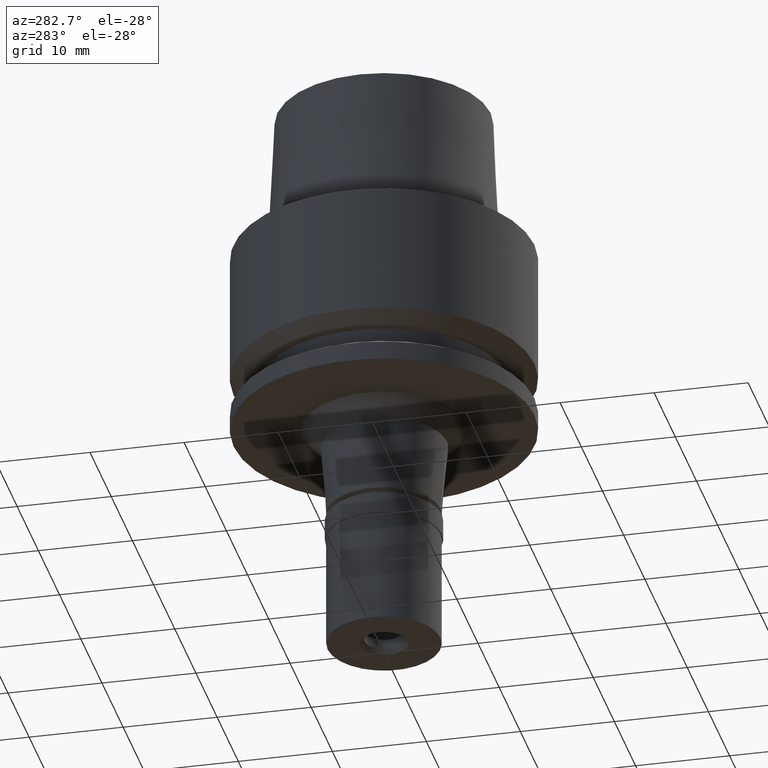
[diagram: clean part render]
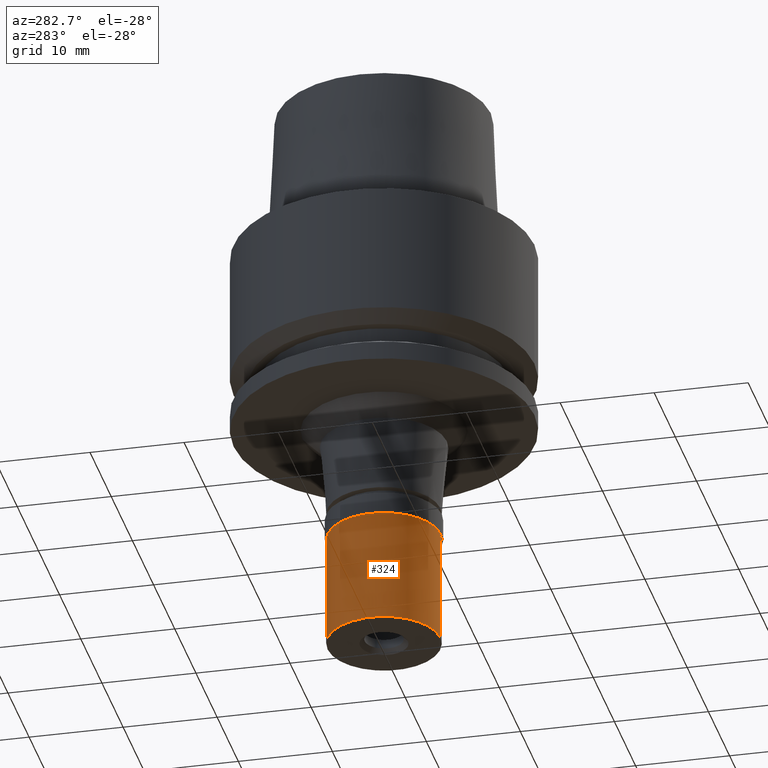
[diagram: same view with one face highlighted and labeled with its STEP entity id]
A machine part, auxiliary view. The second image highlights one B-rep face of the part: STEP entity #324.
In plain terms, the highlighted cylindrical surface (partial cylindrical patch) has radius 6 mm, axis along (0, 0, 1).
Its self-contained STEP definition (entity closure, byte-faithful):
#36 = ORIENTED_EDGE ( 'NONE', *, *, #2521, .F. ) ;
#61 = FACE_OUTER_BOUND ( 'NONE', #1991, .T. ) ;
#228 = AXIS2_PLACEMENT_3D ( 'NONE', #1752, #1112, #2361 ) ;
#252 = VERTEX_POINT ( 'NONE', #676 ) ;
#258 = AXIS2_PLACEMENT_3D ( 'NONE', #472, #2342, #2360 ) ;
#280 = CYLINDRICAL_SURFACE ( 'NONE', #438, 6.000000000000000000 ) ;
#292 = EDGE_CURVE ( 'NONE', #252, #1586, #2359, .T. ) ;
#324 = ADVANCED_FACE ( 'NONE', ( #61 ), #280, .T. ) ;
#360 = CARTESIAN_POINT ( 'NONE',  ( 0.0000000000000000000, 6.000000000000000000, -2.299999999999999822 ) ) ;
#415 = ORIENTED_EDGE ( 'NONE', *, *, #2430, .T. ) ;
#438 = AXIS2_PLACEMENT_3D ( 'NONE', #895, #688, #934 ) ;
#472 = CARTESIAN_POINT ( 'NONE',  ( 0.0000000000000000000, 0.0000000000000000000, -2.299999999999999822 ) ) ;
#656 = DIRECTION ( 'NONE',  ( 0.0000000000000000000, 0.0000000000000000000, -1.000000000000000000 ) ) ;
#657 = DIRECTION ( 'NONE',  ( 0.0000000000000000000, 0.0000000000000000000, -1.000000000000000000 ) ) ;
#676 = CARTESIAN_POINT ( 'NONE',  ( 0.0000000000000000000, 6.000000000000000000, -14.50000000000000000 ) ) ;
#684 = CARTESIAN_POINT ( 'NONE',  ( 0.0000000000000000000, -6.000000000000000000, -2.299999999999999822 ) ) ;
#688 = DIRECTION ( 'NONE',  ( 0.0000000000000000000, 0.0000000000000000000, 1.000000000000000000 ) ) ;
#772 = CARTESIAN_POINT ( 'NONE',  ( 0.0000000000000000000, -6.000000000000000000, -2.299999999999999822 ) ) ;
#822 = VECTOR ( 'NONE', #657, 1000.000000000000000 ) ;
#880 = CIRCLE ( 'NONE', #258, 6.000000000000000000 ) ;
#895 = CARTESIAN_POINT ( 'NONE',  ( 0.0000000000000000000, 0.0000000000000000000, -15.22500000000000142 ) ) ;
#924 = VERTEX_POINT ( 'NONE', #360 ) ;
#934 = DIRECTION ( 'NONE',  ( 0.0000000000000000000, 1.000000000000000000, 0.0000000000000000000 ) ) ;
#1063 = CARTESIAN_POINT ( 'NONE',  ( 0.0000000000000000000, 6.000000000000000000, -2.299999999999999822 ) ) ;
#1112 = DIRECTION ( 'NONE',  ( 0.0000000000000000000, 0.0000000000000000000, 1.000000000000000000 ) ) ;
#1345 = VECTOR ( 'NONE', #656, 1000.000000000000000 ) ;
#1424 = VERTEX_POINT ( 'NONE', #772 ) ;
#1586 = VERTEX_POINT ( 'NONE', #1766 ) ;
#1752 = CARTESIAN_POINT ( 'NONE',  ( 0.0000000000000000000, 0.0000000000000000000, -14.50000000000000000 ) ) ;
#1766 = CARTESIAN_POINT ( 'NONE',  ( 0.0000000000000000000, -6.000000000000000000, -14.50000000000000000 ) ) ;
#1991 = EDGE_LOOP ( 'NONE', ( #2253, #36, #415, #2610 ) ) ;
#2002 = EDGE_CURVE ( 'NONE', #924, #252, #2295, .T. ) ;
#2253 = ORIENTED_EDGE ( 'NONE', *, *, #292, .T. ) ;
#2295 = LINE ( 'NONE', #1063, #1345 ) ;
#2342 = DIRECTION ( 'NONE',  ( 0.0000000000000000000, 0.0000000000000000000, -1.000000000000000000 ) ) ;
#2359 = CIRCLE ( 'NONE', #228, 6.000000000000000000 ) ;
#2360 = DIRECTION ( 'NONE',  ( 0.0000000000000000000, -1.000000000000000000, 0.0000000000000000000 ) ) ;
#2361 = DIRECTION ( 'NONE',  ( 0.0000000000000000000, 1.000000000000000000, 0.0000000000000000000 ) ) ;
#2430 = EDGE_CURVE ( 'NONE', #1424, #924, #880, .T. ) ;
#2521 = EDGE_CURVE ( 'NONE', #1424, #1586, #2550, .T. ) ;
#2550 = LINE ( 'NONE', #684, #822 ) ;
#2610 = ORIENTED_EDGE ( 'NONE', *, *, #2002, .T. ) ;